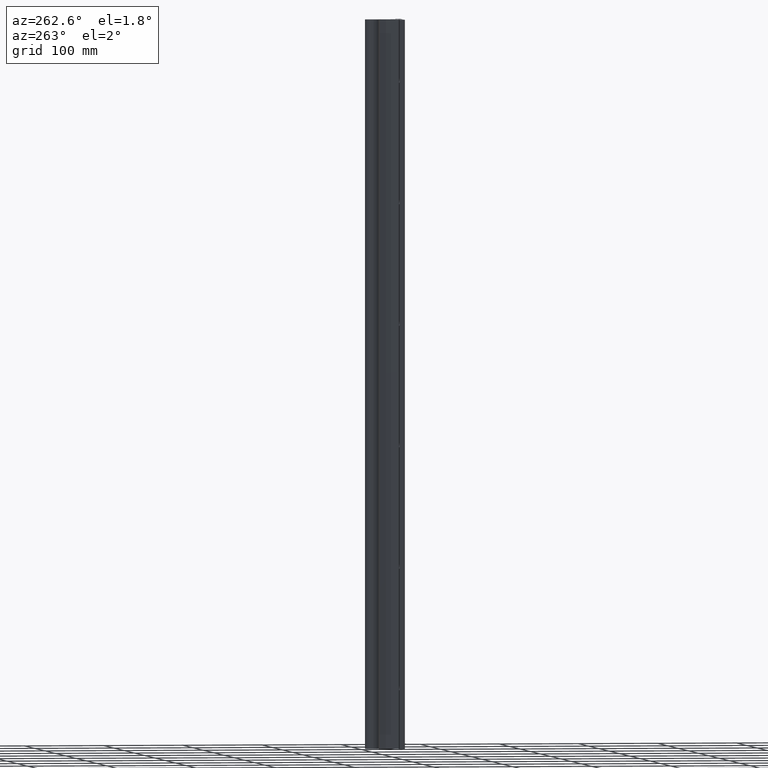
[diagram: clean part render]
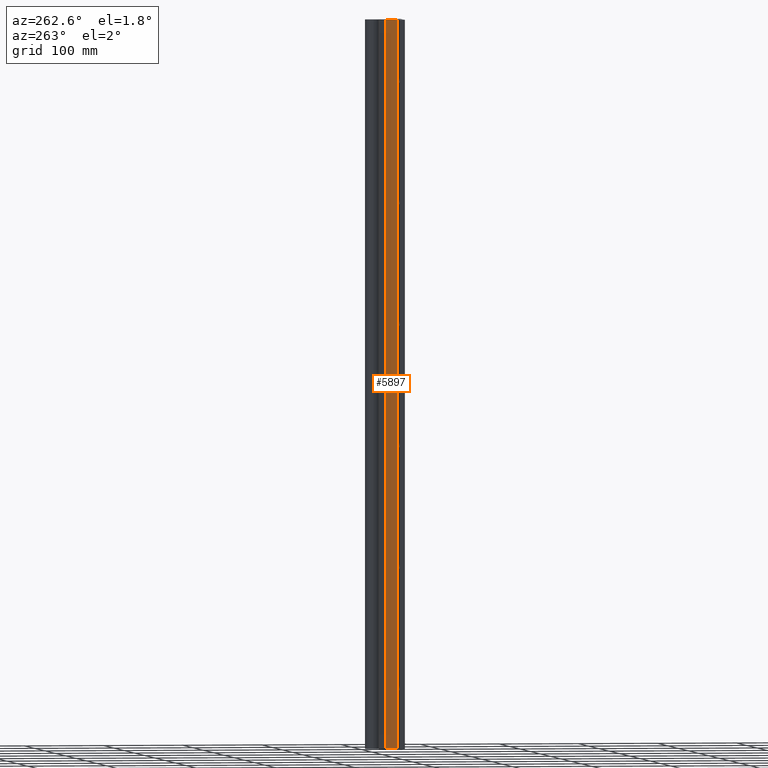
[diagram: same view with one face highlighted and labeled with its STEP entity id]
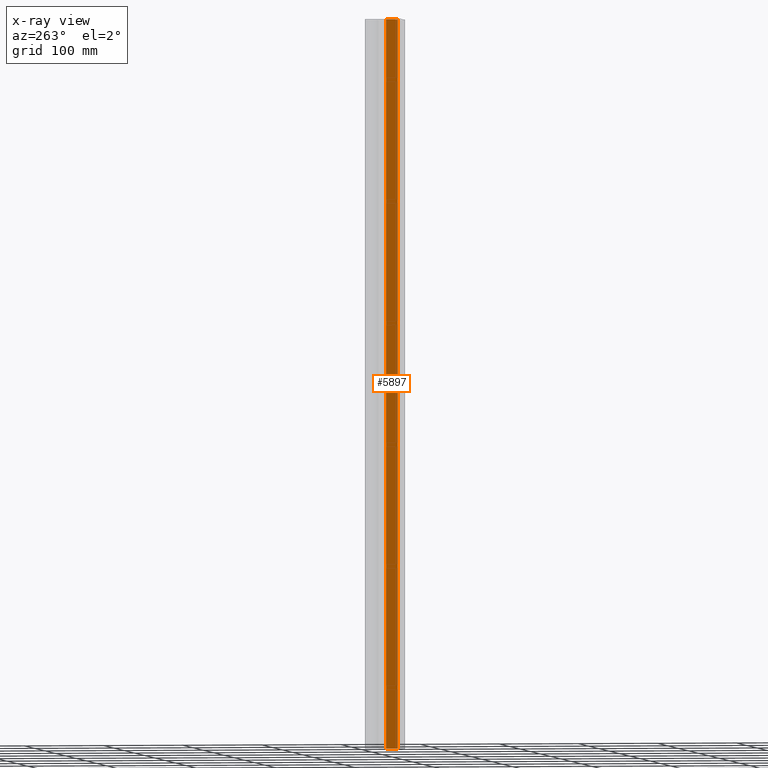
[diagram: x-ray of the same camera — body ghosted, the highlighted face saturated]
A machine part, auxiliary view. The second image highlights one B-rep face of the part: STEP entity #5897.
The next image is the same camera in x-ray: the body ghosted, the highlighted face saturated — about 0% of this face is hidden behind the body in this view.
In plain terms, the highlighted planar face has unit normal (-0.9511, 0.309, 0).
Its self-contained STEP definition (entity closure, byte-faithful):
#282 = VERTEX_POINT ( 'NONE', #5426 ) ;
#299 = ORIENTED_EDGE ( 'NONE', *, *, #7884, .F. ) ;
#855 = LINE ( 'NONE', #11365, #8435 ) ;
#1053 = PLANE ( 'NONE',  #9684 ) ;
#1290 = DIRECTION ( 'NONE',  ( -0.3090169943511710260, -0.9510565163028790181, 0.000000000000000000 ) ) ;
#2525 = VECTOR ( 'NONE', #11461, 39.37007874015748143 ) ;
#2547 = CARTESIAN_POINT ( 'NONE',  ( -0.1905589677000024129, 0.8519652309999998785, -38.10463218188032641 ) ) ;
#3079 = LINE ( 'NONE', #8135, #2525 ) ;
#3906 = LINE ( 'NONE', #12138, #8275 ) ;
#4011 = EDGE_CURVE ( 'NONE', #282, #10554, #3906, .T. ) ;
#4590 = ORIENTED_EDGE ( 'NONE', *, *, #7001, .F. ) ;
#5251 = CARTESIAN_POINT ( 'NONE',  ( -0.3721172034000003737, 0.2931864378999993193, 0.000000000000000000 ) ) ;
#5426 = CARTESIAN_POINT ( 'NONE',  ( -0.3721172034000003181, 0.2931864378999994303, -36.00000000000000000 ) ) ;
#5897 = ADVANCED_FACE ( 'NONE', ( #11439 ), #1053, .T. ) ;
#5975 = VERTEX_POINT ( 'NONE', #9043 ) ;
#6297 = ORIENTED_EDGE ( 'NONE', *, *, #4011, .T. ) ;
#7001 = EDGE_CURVE ( 'NONE', #282, #8881, #3079, .T. ) ;
#7404 = CARTESIAN_POINT ( 'NONE',  ( -0.1905589677000024129, 0.8519652309999998785, -36.00000000000000000 ) ) ;
#7884 = EDGE_CURVE ( 'NONE', #5975, #10554, #855, .T. ) ;
#8135 = CARTESIAN_POINT ( 'NONE',  ( -0.1905589677000024129, 0.8519652309999998785, -36.00000000000000000 ) ) ;
#8275 = VECTOR ( 'NONE', #13319, 39.37007874015748143 ) ;
#8422 = CARTESIAN_POINT ( 'NONE',  ( -0.1905589677000024129, 0.8519652309999998785, -38.10463218188032641 ) ) ;
#8435 = VECTOR ( 'NONE', #9195, 39.37007874015748143 ) ;
#8881 = VERTEX_POINT ( 'NONE', #7404 ) ;
#9043 = CARTESIAN_POINT ( 'NONE',  ( -0.1905589677000024129, 0.8519652309999998785, 0.000000000000000000 ) ) ;
#9195 = DIRECTION ( 'NONE',  ( -0.3090169943511710260, -0.9510565163028790181, 0.000000000000000000 ) ) ;
#9214 = EDGE_CURVE ( 'NONE', #8881, #5975, #9698, .T. ) ;
#9684 = AXIS2_PLACEMENT_3D ( 'NONE', #2547, #12008, #1290 ) ;
#9698 = LINE ( 'NONE', #8422, #12905 ) ;
#10554 = VERTEX_POINT ( 'NONE', #5251 ) ;
#11365 = CARTESIAN_POINT ( 'NONE',  ( -0.1905589677000024129, 0.8519652309999998785, 0.000000000000000000 ) ) ;
#11439 = FACE_OUTER_BOUND ( 'NONE', #13227, .T. ) ;
#11461 = DIRECTION ( 'NONE',  ( 0.3090169943511710260, 0.9510565163028790181, -0.000000000000000000 ) ) ;
#11692 = ORIENTED_EDGE ( 'NONE', *, *, #9214, .F. ) ;
#12008 = DIRECTION ( 'NONE',  ( -0.9510565163028790181, 0.3090169943511710260, 0.000000000000000000 ) ) ;
#12138 = CARTESIAN_POINT ( 'NONE',  ( -0.3721172034000003181, 0.2931864378999993193, -38.10463218188032641 ) ) ;
#12642 = DIRECTION ( 'NONE',  ( 0.000000000000000000, 0.000000000000000000, 1.000000000000000000 ) ) ;
#12905 = VECTOR ( 'NONE', #12642, 39.37007874015748143 ) ;
#13227 = EDGE_LOOP ( 'NONE', ( #4590, #6297, #299, #11692 ) ) ;
#13319 = DIRECTION ( 'NONE',  ( 0.000000000000000000, 0.000000000000000000, 1.000000000000000000 ) ) ;